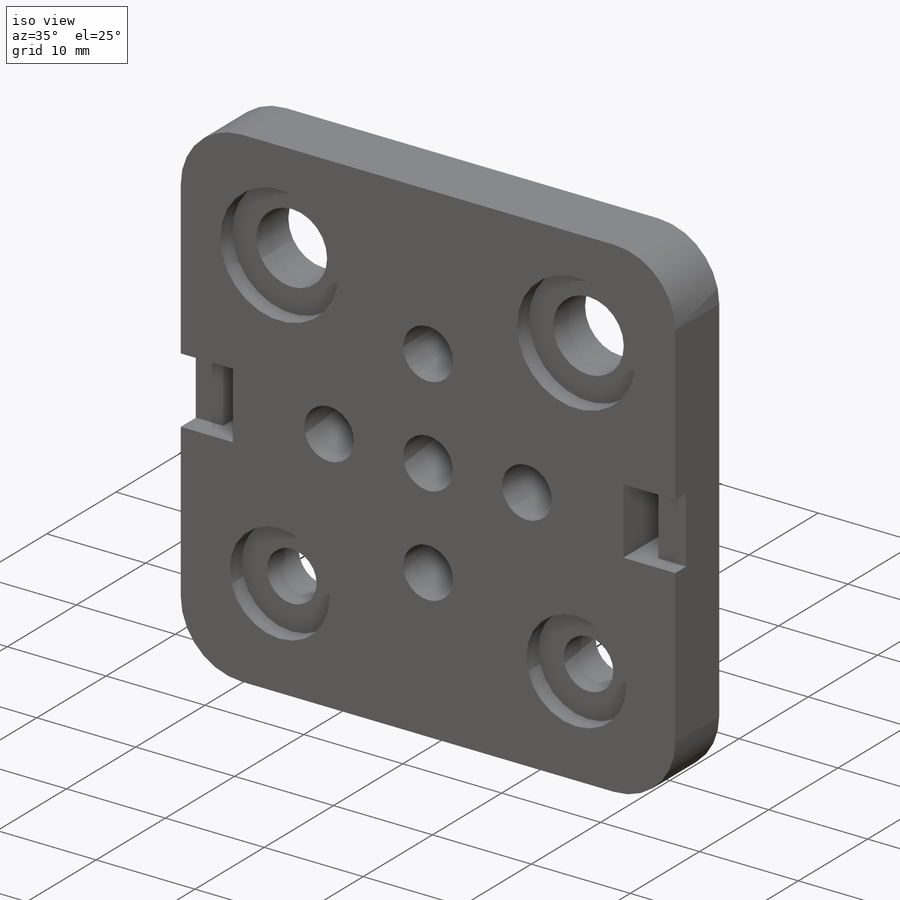
[diagram: iso view]
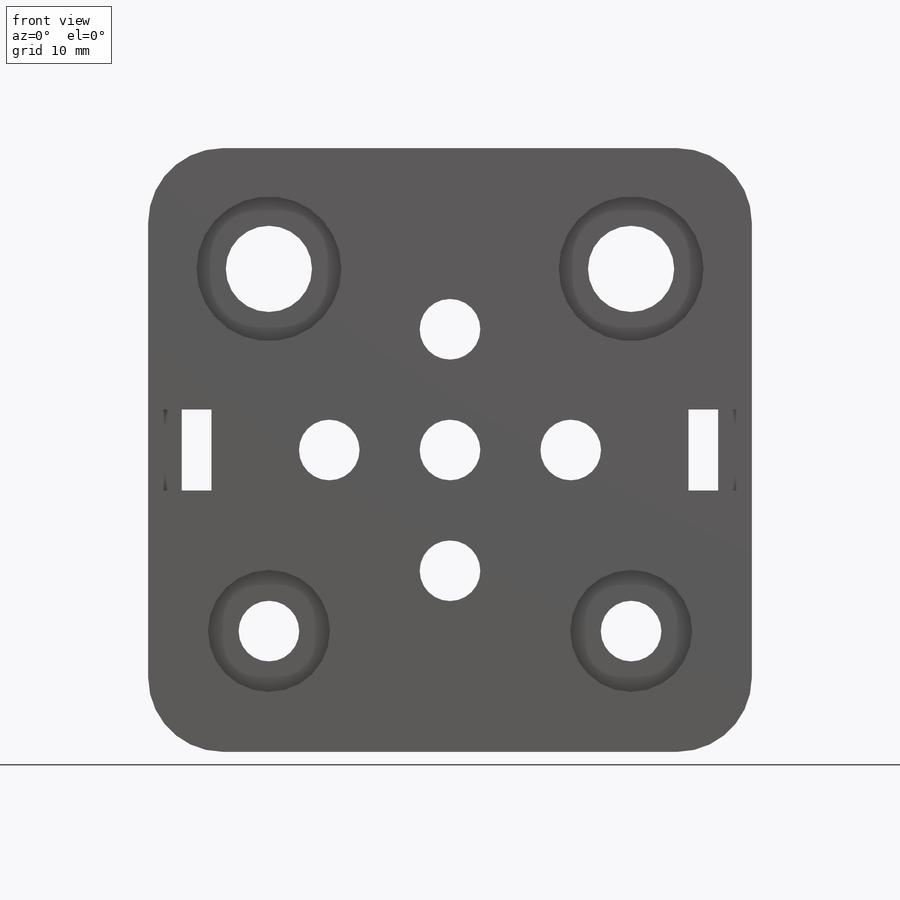
[diagram: front view]
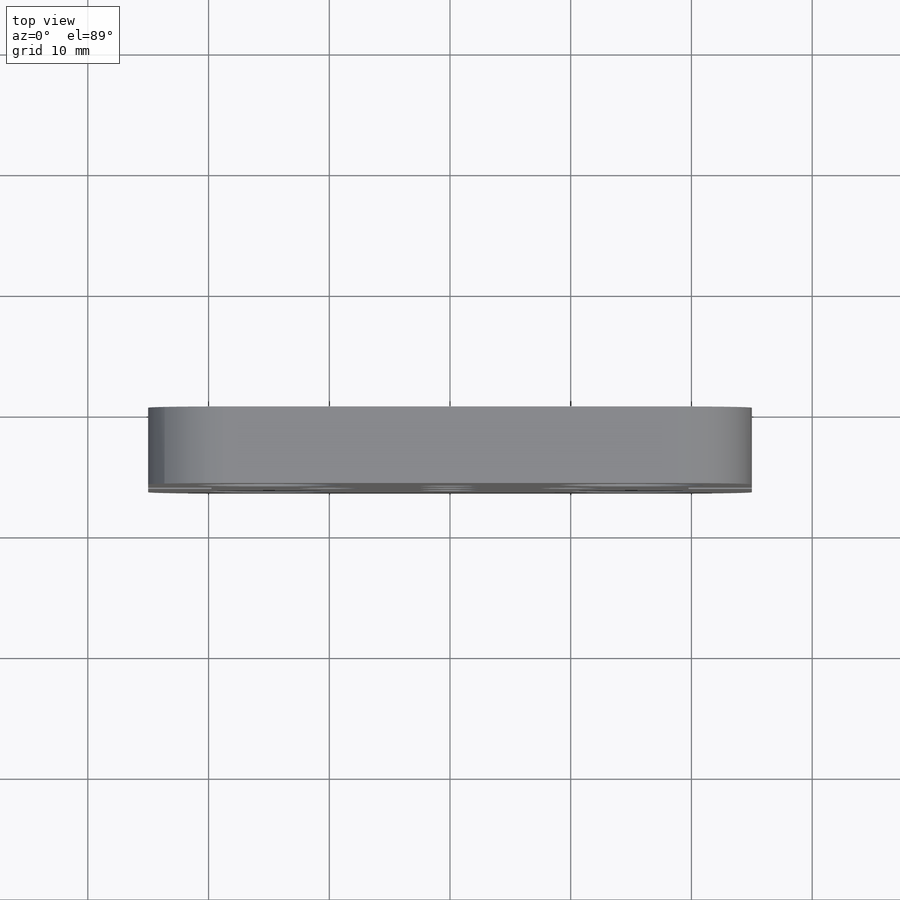
[diagram: top view]
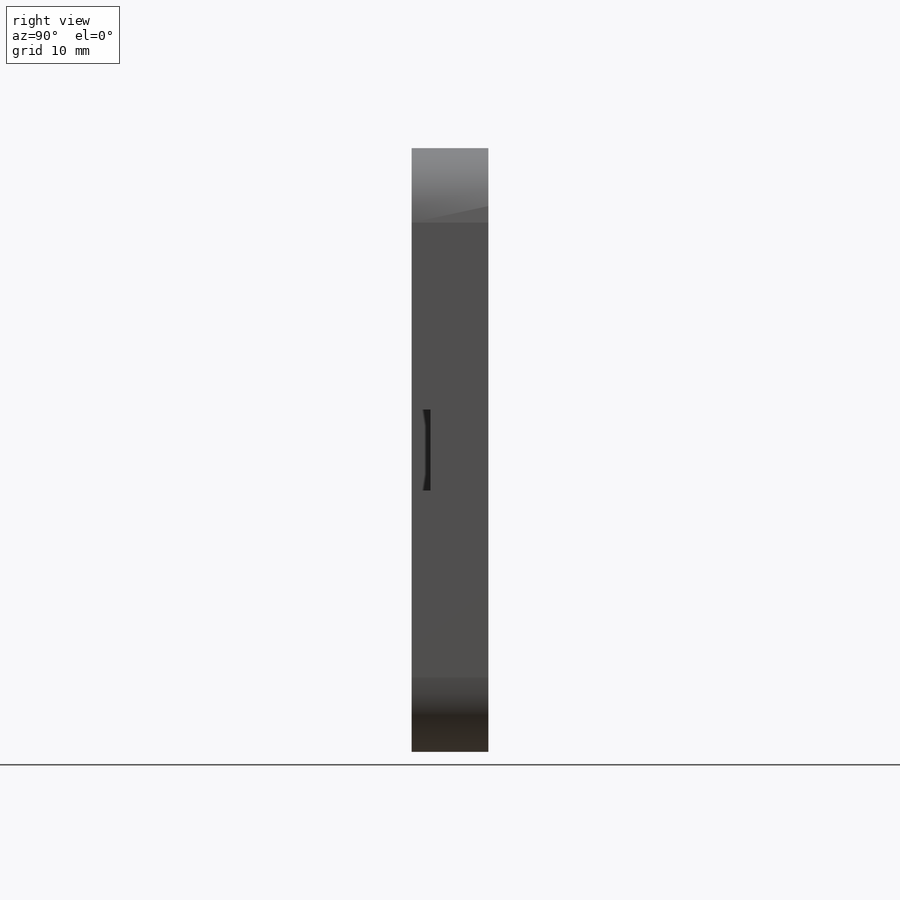
[diagram: right view]
SOLIDWORKS PART (.sldprt)
format: sldprt  version: not decoded by parser v0  size: 293,376 bytes
history: native  units: mm
features: sketch x4, extrude x2, cut_extrude x2, material x1, fillet x1 (+12 scaffold rows collapsed)
feature tree (22):
  scaffold x12  (default folders/planes/origin — collapsed)
  material  "Material <not specified>"
  sketch  "Sketch1"  dims[c1.D4=7.14mm c1.D6=5.02mm c1.D7=5.02mm c1.D1=50.0mm c1.D2=50.0mm c1.D3=30.0mm c2.D4=30.0mm c2.D5=20.0mm]
  extrude  "Boss-Extrude1"  Depth=6.35mm
  sketch  "Sketch2"  dims[D1=2.43mm D2=2.43mm D3=2.54mm D4=2.54mm]
  cut_extrude  "Cut-Extrude1"  Depth=1.75mm
  sketch  "Sketch3"  dims[D1=5.25mm D2=6.7mm]
  cut_extrude  "Cut-Extrude2"  Depth=7mm
  sketch  "Sketch4"  dims[D1=4.18mm D2=2.785mm D3=4.8mm D4=2.79mm]
  extrude  "Boss-Extrude3"  [1 undecoded]
  fillet  "Fillet1"  Radius=6.17mm
decode coverage: 8 of 9 modeling features carry decoded parameters
note: 1 parameter value undecoded
note: suppression state not decoded; provenance and decode notes live in map.json
